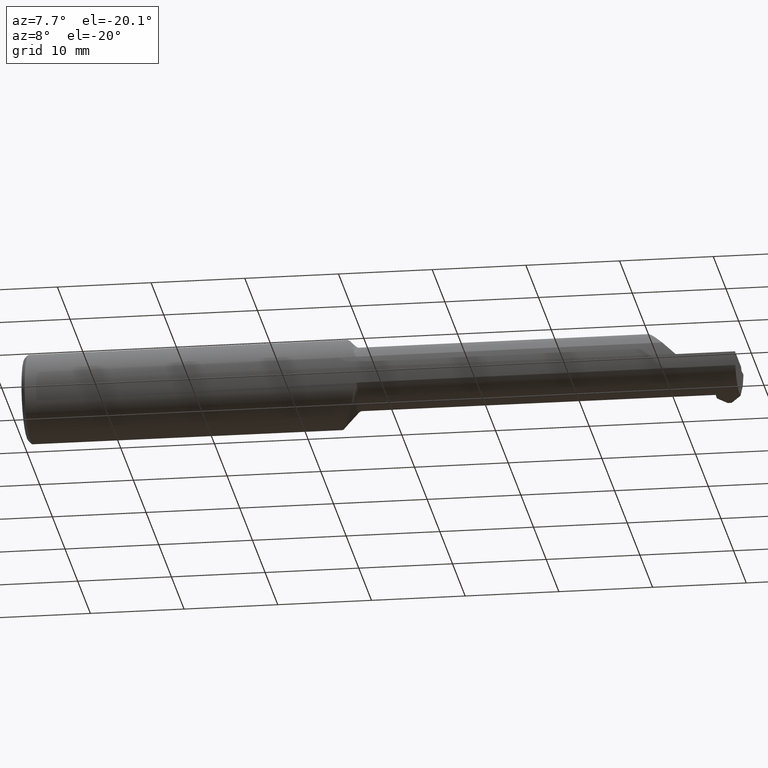
[diagram: clean part render]
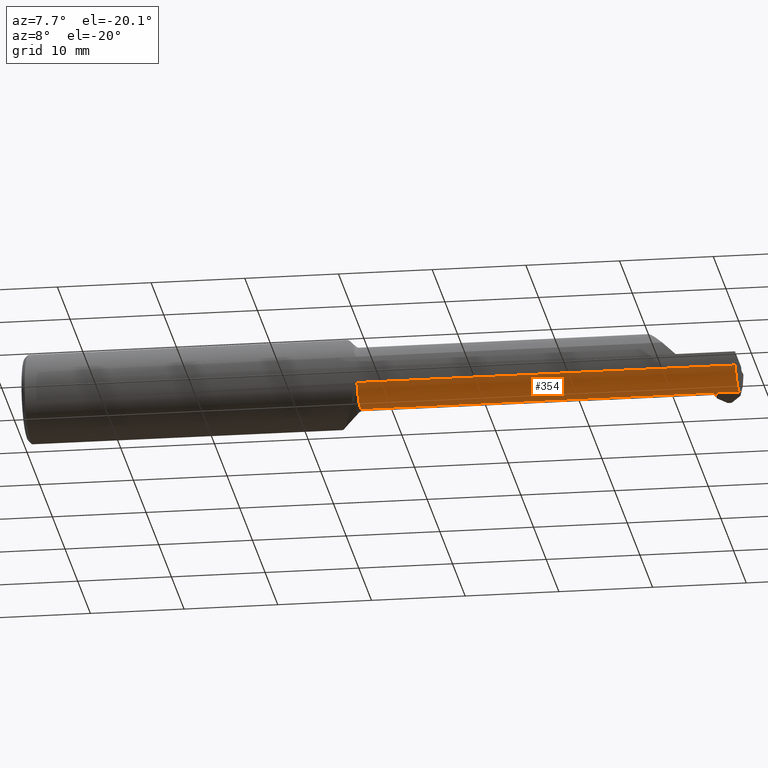
[diagram: same view with one face highlighted and labeled with its STEP entity id]
A machine part, auxiliary view. The second image highlights one B-rep face of the part: STEP entity #354.
In plain terms, the highlighted cylindrical surface (edge-blend (fillet) strip) has radius 3.3782 mm, axis along (-1, -0, -0).
Its self-contained STEP definition (entity closure, byte-faithful):
#11 = CARTESIAN_POINT ( 'NONE',  ( 1.400000000000000133, -0.05834999999999981868, 0.000000000000000000 ) ) ;
#27 = ORIENTED_EDGE ( 'NONE', *, *, #514, .T. ) ;
#53 = VERTEX_POINT ( 'NONE', #934 ) ;
#192 = DIRECTION ( 'NONE',  ( 0.000000000000000000, 0.000000000000000000, 1.000000000000000000 ) ) ;
#206 = CARTESIAN_POINT ( 'NONE',  ( 3.000000000000000444, -0.05834999999999983950, -0.1329999999999999793 ) ) ;
#235 = ORIENTED_EDGE ( 'NONE', *, *, #1053, .F. ) ;
#253 = CARTESIAN_POINT ( 'NONE',  ( 3.000000000000000444, -0.05834999999999981868, 0.000000000000000000 ) ) ;
#269 = AXIS2_PLACEMENT_3D ( 'NONE', #11, #494, #1136 ) ;
#327 = CARTESIAN_POINT ( 'NONE',  ( 1.410355339059327306, -0.1783697086546704169, -0.05730854678359931925 ) ) ;
#343 = AXIS2_PLACEMENT_3D ( 'NONE', #253, #541, #192 ) ;
#354 = ADVANCED_FACE ( 'NONE', ( #666 ), #584, .T. ) ;
#368 = AXIS2_PLACEMENT_3D ( 'NONE', #771, #1144, #874 ) ;
#400 = CARTESIAN_POINT ( 'NONE',  ( 2.140000000000000568, -0.1783697086546704169, -0.05730854678359931925 ) ) ;
#410 = VERTEX_POINT ( 'NONE', #206 ) ;
#427 = VECTOR ( 'NONE', #848, 39.37007874015748143 ) ;
#480 = CARTESIAN_POINT ( 'NONE',  ( 1.410355339059327306, -0.05834999999999980480, -0.1330000000000000071 ) ) ;
#489 = CIRCLE ( 'NONE', #368, 0.1330000000000000071 ) ;
#494 = DIRECTION ( 'NONE',  ( -1.000000000000000000, -0.000000000000000000, -0.000000000000000000 ) ) ;
#497 = DIRECTION ( 'NONE',  ( -1.000000000000000000, -0.000000000000000000, -0.000000000000000000 ) ) ;
#514 = EDGE_CURVE ( 'NONE', #53, #1159, #677, .T. ) ;
#541 = DIRECTION ( 'NONE',  ( 1.000000000000000000, -0.000000000000000000, -0.000000000000000000 ) ) ;
#584 = CYLINDRICAL_SURFACE ( 'NONE', #269, 0.1330000000000000071 ) ;
#666 = FACE_OUTER_BOUND ( 'NONE', #723, .T. ) ;
#676 = VECTOR ( 'NONE', #792, 39.37007874015748143 ) ;
#677 = LINE ( 'NONE', #400, #808 ) ;
#700 = ORIENTED_EDGE ( 'NONE', *, *, #987, .F. ) ;
#723 = EDGE_LOOP ( 'NONE', ( #727, #235, #700, #27, #1057 ) ) ;
#727 = ORIENTED_EDGE ( 'NONE', *, *, #1158, .F. ) ;
#771 = CARTESIAN_POINT ( 'NONE',  ( 1.410355339059327306, -0.05834999999999981868, 0.000000000000000000 ) ) ;
#792 = DIRECTION ( 'NONE',  ( -1.000000000000000000, -0.000000000000000000, -0.000000000000000000 ) ) ;
#808 = VECTOR ( 'NONE', #497, 39.37007874015748143 ) ;
#809 = CARTESIAN_POINT ( 'NONE',  ( 2.898797270268486770, -0.05834999999999983950, -0.1329999999999999793 ) ) ;
#848 = DIRECTION ( 'NONE',  ( -1.000000000000000000, -0.000000000000000000, -0.000000000000000000 ) ) ;
#855 = EDGE_CURVE ( 'NONE', #1159, #1077, #489, .T. ) ;
#867 = CIRCLE ( 'NONE', #343, 0.1329999999999999793 ) ;
#874 = DIRECTION ( 'NONE',  ( 0.000000000000000000, 1.797268416884383603E-15, 1.000000000000000000 ) ) ;
#883 = CARTESIAN_POINT ( 'NONE',  ( 1.400000000000000133, -0.05834999999999980480, -0.1330000000000000071 ) ) ;
#934 = CARTESIAN_POINT ( 'NONE',  ( 3.000000000000000444, -0.1783697086546704169, -0.05730854678359924986 ) ) ;
#978 = LINE ( 'NONE', #883, #676 ) ;
#987 = EDGE_CURVE ( 'NONE', #53, #410, #867, .T. ) ;
#1022 = VERTEX_POINT ( 'NONE', #809 ) ;
#1039 = LINE ( 'NONE', #1132, #427 ) ;
#1053 = EDGE_CURVE ( 'NONE', #410, #1022, #1039, .T. ) ;
#1057 = ORIENTED_EDGE ( 'NONE', *, *, #855, .T. ) ;
#1077 = VERTEX_POINT ( 'NONE', #480 ) ;
#1132 = CARTESIAN_POINT ( 'NONE',  ( 3.000000000000000444, -0.05834999999999983950, -0.1329999999999999793 ) ) ;
#1136 = DIRECTION ( 'NONE',  ( 0.000000000000000000, 0.000000000000000000, 1.000000000000000000 ) ) ;
#1144 = DIRECTION ( 'NONE',  ( 1.000000000000000000, 0.000000000000000000, 0.000000000000000000 ) ) ;
#1158 = EDGE_CURVE ( 'NONE', #1022, #1077, #978, .T. ) ;
#1159 = VERTEX_POINT ( 'NONE', #327 ) ;